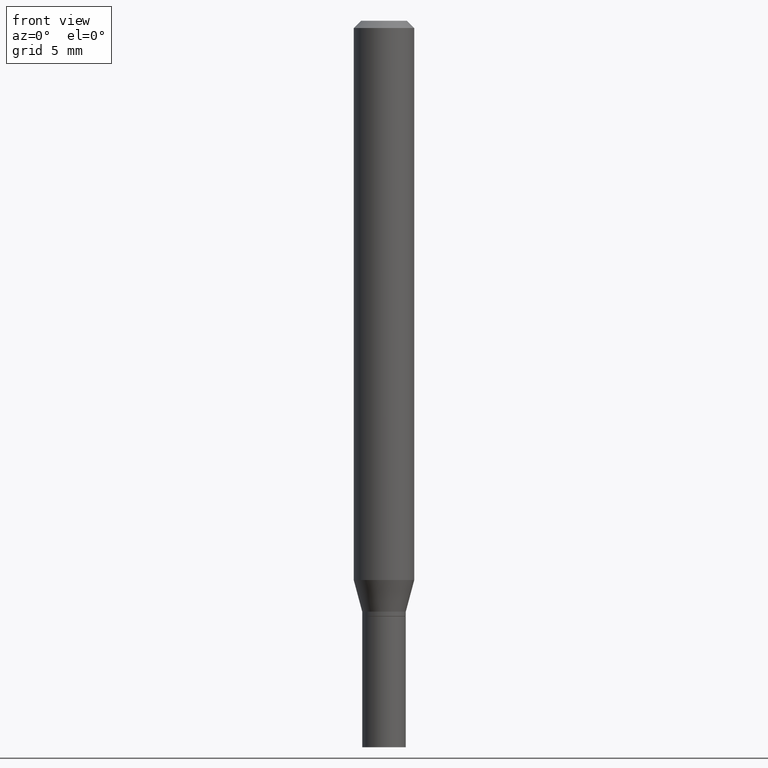
[diagram: clean part render]
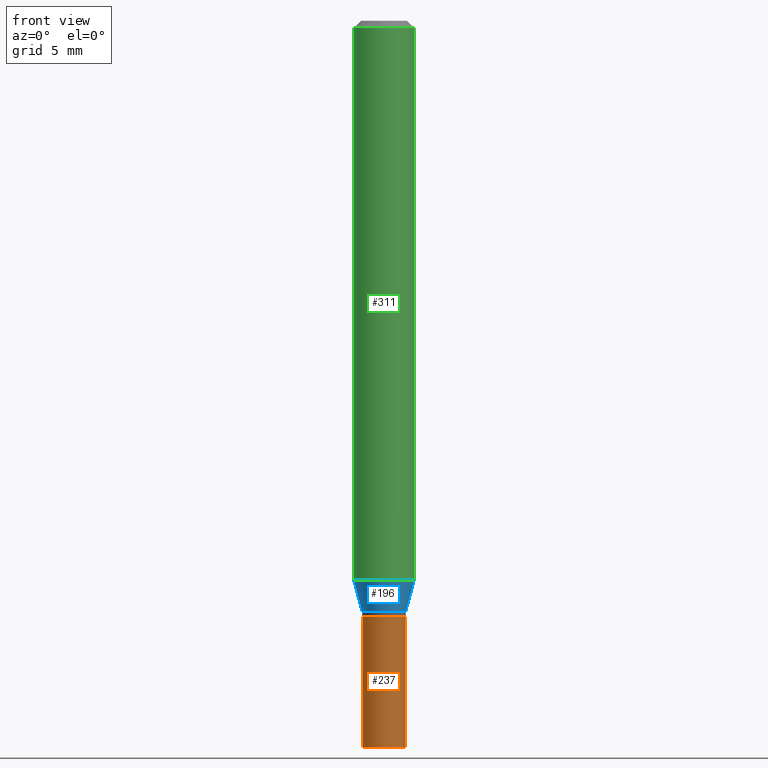
[diagram: same view with three faces highlighted in distinct colors, each labeled with its STEP entity id]
A machine part, front view with three faces highlighted in distinct colors.
Their STEP definitions:

[orange] entity #237 — the highlighted cylindrical surface (edge-blend (fillet) strip) has radius 1.143 mm, axis along (-0, 0, 1).
#10 = CYLINDRICAL_SURFACE ( 'NONE', #13, 0.04499999999999999833 ) ;
#13 = AXIS2_PLACEMENT_3D ( 'NONE', #261, #223, #300 ) ;
#27 = CARTESIAN_POINT ( 'NONE',  ( 0.04499999999999999833, -5.551455328760600652E-15, -1.500000000000000222 ) ) ;
#35 = EDGE_LOOP ( 'NONE', ( #376, #386, #175, #277 ) ) ;
#42 = CARTESIAN_POINT ( 'NONE',  ( -0.04499999999999999833, -4.446127796428848702E-15, -1.500000000000000222 ) ) ;
#71 = DIRECTION ( 'NONE',  ( -2.445468806185136597E-29, 3.491481338843145583E-15, 1.000000000000000000 ) ) ;
#84 = DIRECTION ( 'NONE',  ( -2.445468806185136877E-29, 3.491481338843145188E-15, 1.000000000000000000 ) ) ;
#87 = CARTESIAN_POINT ( 'NONE',  ( 0.04499999999999999833, -3.142333204958819823E-16, 2.194279549108170967E-30 ) ) ;
#103 = VERTEX_POINT ( 'NONE', #42 ) ;
#117 = CIRCLE ( 'NONE', #445, 0.04499999999999999833 ) ;
#143 = EDGE_CURVE ( 'NONE', #103, #245, #362, .T. ) ;
#175 = ORIENTED_EDGE ( 'NONE', *, *, #233, .T. ) ;
#181 = VECTOR ( 'NONE', #84, 39.37007874015748143 ) ;
#205 = CARTESIAN_POINT ( 'NONE',  ( 3.668203209277704895E-29, -5.237222008264718177E-15, -1.500000000000000222 ) ) ;
#223 = DIRECTION ( 'NONE',  ( -2.445468806185136597E-29, 3.491481338843145583E-15, 1.000000000000000000 ) ) ;
#230 = CARTESIAN_POINT ( 'NONE',  ( 3.007926631607718216E-29, -4.294522046777069173E-15, -1.230000000000000204 ) ) ;
#233 = EDGE_CURVE ( 'NONE', #339, #266, #290, .T. ) ;
#234 = CIRCLE ( 'NONE', #293, 0.04499999999999999833 ) ;
#237 = ADVANCED_FACE ( 'NONE', ( #292 ), #10, .T. ) ;
#241 = DIRECTION ( 'NONE',  ( 1.000000000000000000, -6.982962677686269077E-15, 0.000000000000000000 ) ) ;
#245 = VERTEX_POINT ( 'NONE', #367 ) ;
#249 = VECTOR ( 'NONE', #335, 39.37007874015748143 ) ;
#256 = CARTESIAN_POINT ( 'NONE',  ( -0.04499999999999999833, 3.197442310920450718E-16, -2.213520790614707560E-30 ) ) ;
#258 = CARTESIAN_POINT ( 'NONE',  ( 0.04499999999999999833, -4.608755367272951648E-15, -1.230000000000000204 ) ) ;
#261 = CARTESIAN_POINT ( 'NONE',  ( 0.000000000000000000, 0.000000000000000000, 0.000000000000000000 ) ) ;
#266 = VERTEX_POINT ( 'NONE', #258 ) ;
#277 = ORIENTED_EDGE ( 'NONE', *, *, #327, .F. ) ;
#290 = LINE ( 'NONE', #87, #249 ) ;
#292 = FACE_OUTER_BOUND ( 'NONE', #35, .T. ) ;
#293 = AXIS2_PLACEMENT_3D ( 'NONE', #205, #71, #241 ) ;
#299 = DIRECTION ( 'NONE',  ( -2.445468806185136597E-29, 3.491481338843145583E-15, 1.000000000000000000 ) ) ;
#300 = DIRECTION ( 'NONE',  ( 1.000000000000000000, -6.982962677686266711E-15, 4.876176775795935793E-29 ) ) ;
#327 = EDGE_CURVE ( 'NONE', #245, #266, #117, .T. ) ;
#335 = DIRECTION ( 'NONE',  ( -2.445468806185136877E-29, 3.491481338843145188E-15, 1.000000000000000000 ) ) ;
#339 = VERTEX_POINT ( 'NONE', #27 ) ;
#362 = LINE ( 'NONE', #256, #181 ) ;
#367 = CARTESIAN_POINT ( 'NONE',  ( -0.04499999999999999833, -4.446127796428848702E-15, -1.230000000000000204 ) ) ;
#376 = ORIENTED_EDGE ( 'NONE', *, *, #143, .F. ) ;
#386 = ORIENTED_EDGE ( 'NONE', *, *, #406, .T. ) ;
#406 = EDGE_CURVE ( 'NONE', #103, #339, #234, .T. ) ;
#445 = AXIS2_PLACEMENT_3D ( 'NONE', #230, #299, #450 ) ;
#450 = DIRECTION ( 'NONE',  ( 1.000000000000000000, -6.982962677686269077E-15, 0.000000000000000000 ) ) ;

[blue] entity #196 — the highlighted conical surface has half-angle 15 deg.
#9 = CARTESIAN_POINT ( 'NONE',  ( 2.823756201468233313E-29, -4.031575482759418834E-15, -1.154689110867545443 ) ) ;
#12 = FACE_OUTER_BOUND ( 'NONE', #160, .T. ) ;
#23 = AXIS2_PLACEMENT_3D ( 'NONE', #428, #31, #133 ) ;
#31 = DIRECTION ( 'NONE',  ( -2.445468806185136597E-29, 3.491481338843145583E-15, 1.000000000000000000 ) ) ;
#34 = CARTESIAN_POINT ( 'NONE',  ( -0.04500000000000019262, -3.939863002296591368E-15, -1.220000000000000195 ) ) ;
#36 = AXIS2_PLACEMENT_3D ( 'NONE', #159, #89, #51 ) ;
#44 = CARTESIAN_POINT ( 'NONE',  ( 0.04500000000000019262, -4.573840553884520788E-15, -1.220000000000000195 ) ) ;
#51 = DIRECTION ( 'NONE',  ( 1.000000000000000000, -6.982962677686259611E-15, 0.000000000000000000 ) ) ;
#57 = EDGE_CURVE ( 'NONE', #110, #457, #264, .T. ) ;
#65 = EDGE_CURVE ( 'NONE', #238, #457, #255, .T. ) ;
#89 = DIRECTION ( 'NONE',  ( -2.445468806185136597E-29, 3.491481338843145583E-15, 1.000000000000000000 ) ) ;
#95 = VECTOR ( 'NONE', #421, 39.37007874015748143 ) ;
#110 = VERTEX_POINT ( 'NONE', #115 ) ;
#115 = CARTESIAN_POINT ( 'NONE',  ( -0.06250000000000000000, -3.587486272909356218E-15, -1.154689110867545443 ) ) ;
#133 = DIRECTION ( 'NONE',  ( 1.000000000000000000, -6.982962677686259611E-15, 0.000000000000000000 ) ) ;
#152 = DIRECTION ( 'NONE',  ( -2.445468806185136597E-29, 3.491481338843145583E-15, 1.000000000000000000 ) ) ;
#156 = DIRECTION ( 'NONE',  ( 0.2588190451025205174, 1.565188264969628476E-15, 0.9659258262890684232 ) ) ;
#159 = CARTESIAN_POINT ( 'NONE',  ( 2.983471943545866670E-29, -4.259607233388637524E-15, -1.220000000000000195 ) ) ;
#160 = EDGE_LOOP ( 'NONE', ( #247, #169, #167, #200 ) ) ;
#167 = ORIENTED_EDGE ( 'NONE', *, *, #65, .T. ) ;
#169 = ORIENTED_EDGE ( 'NONE', *, *, #420, .T. ) ;
#196 = ADVANCED_FACE ( 'NONE', ( #12 ), #426, .T. ) ;
#199 = CARTESIAN_POINT ( 'NONE',  ( 0.06250000000000000000, -4.468010650114809714E-15, -1.154689110867545443 ) ) ;
#200 = ORIENTED_EDGE ( 'NONE', *, *, #57, .F. ) ;
#231 = VERTEX_POINT ( 'NONE', #403 ) ;
#238 = VERTEX_POINT ( 'NONE', #453 ) ;
#247 = ORIENTED_EDGE ( 'NONE', *, *, #410, .F. ) ;
#255 = LINE ( 'NONE', #44, #317 ) ;
#264 = CIRCLE ( 'NONE', #451, 0.06250000000000000000 ) ;
#317 = VECTOR ( 'NONE', #156, 39.37007874015748143 ) ;
#324 = CIRCLE ( 'NONE', #23, 0.04500000000000019262 ) ;
#345 = LINE ( 'NONE', #34, #95 ) ;
#364 = DIRECTION ( 'NONE',  ( 1.000000000000000000, -6.982962677686270655E-15, 0.000000000000000000 ) ) ;
#403 = CARTESIAN_POINT ( 'NONE',  ( -0.04500000000000019262, -3.763674637602973398E-15, -1.220000000000000195 ) ) ;
#410 = EDGE_CURVE ( 'NONE', #231, #110, #345, .T. ) ;
#420 = EDGE_CURVE ( 'NONE', #231, #238, #324, .T. ) ;
#421 = DIRECTION ( 'NONE',  ( -0.2588190451025205174, 5.211531920934544731E-15, 0.9659258262890684232 ) ) ;
#426 = CONICAL_SURFACE ( 'NONE', #36, 0.04500000000000019262, 0.2617993877991491858 ) ;
#428 = CARTESIAN_POINT ( 'NONE',  ( 2.983471943545866670E-29, -4.259607233388637524E-15, -1.220000000000000195 ) ) ;
#451 = AXIS2_PLACEMENT_3D ( 'NONE', #9, #152, #364 ) ;
#453 = CARTESIAN_POINT ( 'NONE',  ( 0.04500000000000019262, -4.573840553884520788E-15, -1.220000000000000195 ) ) ;
#457 = VERTEX_POINT ( 'NONE', #199 ) ;

[green] entity #311 — the highlighted cylindrical surface (edge-blend (fillet) strip) has radius 1.5875 mm, axis along (-0, 0, 1).
#9 = CARTESIAN_POINT ( 'NONE',  ( 2.823756201468233313E-29, -4.031575482759418834E-15, -1.154689110867545443 ) ) ;
#15 = CYLINDRICAL_SURFACE ( 'NONE', #414, 0.06250000000000000000 ) ;
#17 = LINE ( 'NONE', #228, #76 ) ;
#43 = CIRCLE ( 'NONE', #291, 0.06250000000000000000 ) ;
#47 = VECTOR ( 'NONE', #184, 39.37007874015748143 ) ;
#50 = DIRECTION ( 'NONE',  ( 1.000000000000000000, -6.982962677686266711E-15, 4.876176775795935793E-29 ) ) ;
#57 = EDGE_CURVE ( 'NONE', #110, #457, #264, .T. ) ;
#70 = VERTEX_POINT ( 'NONE', #435 ) ;
#73 = ORIENTED_EDGE ( 'NONE', *, *, #57, .T. ) ;
#76 = VECTOR ( 'NONE', #371, 39.37007874015748143 ) ;
#99 = ORIENTED_EDGE ( 'NONE', *, *, #298, .T. ) ;
#107 = CARTESIAN_POINT ( 'NONE',  ( 0.06250000000000000000, -4.888073874380388472E-16, -0.01499999999999999944 ) ) ;
#110 = VERTEX_POINT ( 'NONE', #115 ) ;
#115 = CARTESIAN_POINT ( 'NONE',  ( -0.06250000000000000000, -3.587486272909356218E-15, -1.154689110867545443 ) ) ;
#119 = EDGE_CURVE ( 'NONE', #110, #70, #323, .T. ) ;
#152 = DIRECTION ( 'NONE',  ( -2.445468806185136597E-29, 3.491481338843145583E-15, 1.000000000000000000 ) ) ;
#158 = DIRECTION ( 'NONE',  ( -2.445468806185136597E-29, 3.491481338843145583E-15, 1.000000000000000000 ) ) ;
#165 = EDGE_CURVE ( 'NONE', #70, #389, #43, .T. ) ;
#184 = DIRECTION ( 'NONE',  ( -2.445468806185136877E-29, 3.491481338843145188E-15, 1.000000000000000000 ) ) ;
#188 = CARTESIAN_POINT ( 'NONE',  ( 3.668203209277705088E-31, -5.237222008264718399E-17, -0.01499999999999999944 ) ) ;
#199 = CARTESIAN_POINT ( 'NONE',  ( 0.06250000000000000000, -4.468010650114809714E-15, -1.154689110867545443 ) ) ;
#211 = ORIENTED_EDGE ( 'NONE', *, *, #165, .F. ) ;
#228 = CARTESIAN_POINT ( 'NONE',  ( 0.06250000000000000000, -4.364351673553916694E-16, 3.047610484872459871E-30 ) ) ;
#264 = CIRCLE ( 'NONE', #451, 0.06250000000000000000 ) ;
#291 = AXIS2_PLACEMENT_3D ( 'NONE', #188, #158, #391 ) ;
#296 = CARTESIAN_POINT ( 'NONE',  ( 0.000000000000000000, 0.000000000000000000, 0.000000000000000000 ) ) ;
#298 = EDGE_CURVE ( 'NONE', #457, #389, #17, .T. ) ;
#303 = EDGE_LOOP ( 'NONE', ( #454, #73, #99, #211 ) ) ;
#311 = ADVANCED_FACE ( 'NONE', ( #332 ), #15, .T. ) ;
#323 = LINE ( 'NONE', #400, #47 ) ;
#332 = FACE_OUTER_BOUND ( 'NONE', #303, .T. ) ;
#364 = DIRECTION ( 'NONE',  ( 1.000000000000000000, -6.982962677686270655E-15, 0.000000000000000000 ) ) ;
#371 = DIRECTION ( 'NONE',  ( -2.445468806185136877E-29, 3.491481338843145188E-15, 1.000000000000000000 ) ) ;
#389 = VERTEX_POINT ( 'NONE', #107 ) ;
#391 = DIRECTION ( 'NONE',  ( 1.000000000000000000, -6.982962677686266711E-15, 0.000000000000000000 ) ) ;
#400 = CARTESIAN_POINT ( 'NONE',  ( -0.06250000000000000000, 4.440892098500626162E-16, -3.074334431409316114E-30 ) ) ;
#414 = AXIS2_PLACEMENT_3D ( 'NONE', #296, #447, #50 ) ;
#435 = CARTESIAN_POINT ( 'NONE',  ( -0.06250000000000000000, -1.597884641570970340E-15, -0.01499999999999999944 ) ) ;
#447 = DIRECTION ( 'NONE',  ( -2.445468806185136597E-29, 3.491481338843145583E-15, 1.000000000000000000 ) ) ;
#451 = AXIS2_PLACEMENT_3D ( 'NONE', #9, #152, #364 ) ;
#454 = ORIENTED_EDGE ( 'NONE', *, *, #119, .F. ) ;
#457 = VERTEX_POINT ( 'NONE', #199 ) ;